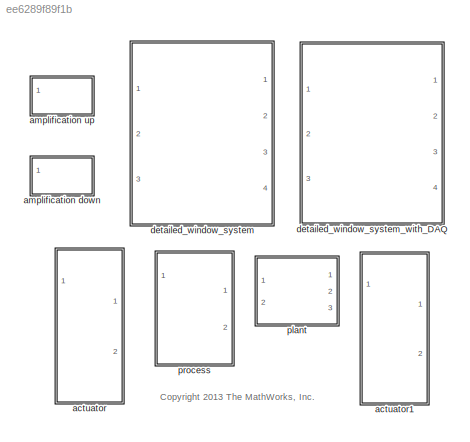
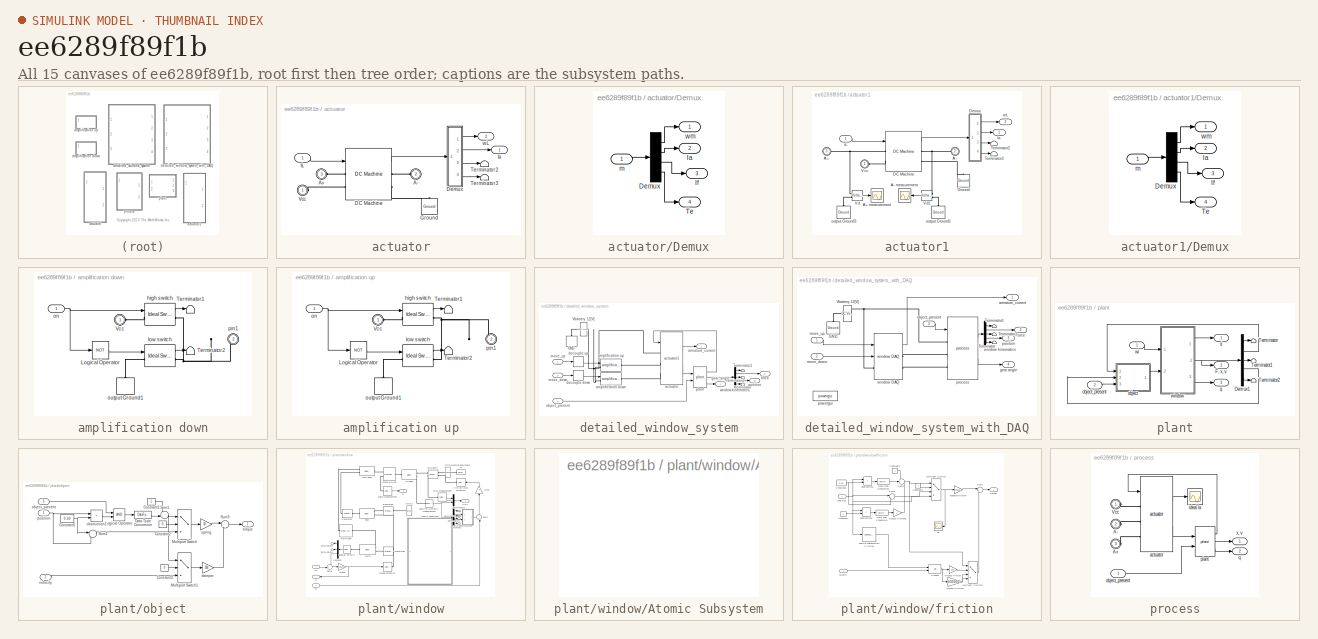
[diagram: thumbnail index - all 15 canvases of the model, root first then tree order]
MODEL slx_ee6289f89f1b
KIND library
BLOCK [SubSystem] actuator
  Ports = [1, 2, 0, 0, 0, 3]
  RequestExecContextInheritance = off
BLOCK [PMIOPort] actuator/A+
  Port = 3
  Side = Left
BLOCK [PMIOPort] actuator/A-
  Port = 2
  Side = Left
BLOCK [Reference] actuator/DC Machine  REF=powerlib/Machines/DC Machine
  Bm = 5
  FieldType = Wound
  Ifinit = 0
  J = 0.085
  Ke = 1.8
  Kt = 1.8
  Laf = 1
  MachineConstant = Torque constant (N.m/A)
  MeasurementBus = off
  MechanicalLoad = Torque TL
  Ports = [1, 1, 0, 0, 0, 2, 2]
  PresetModel = No
  RLa = [0.15  0.036]
  RLf = [1.5 3]
  ShowDetailedParameters = on
  SourceBlock = powerlib/Machines/DC Machine
  SourceType = DC machine
  Tf = 0
  TsBlock = -1
  TsPowergui = 0
  w0 = 0
BLOCK [SubSystem] actuator/Demux
  Ports = [1, 4]
  RequestExecContextInheritance = off
BLOCK [Demux] actuator/Demux/Demux
  Ports = [1, 4]
BLOCK [Outport] actuator/Demux/Ia
  IconDisplay = Port number
  Port = 2
BLOCK [Outport] actuator/Demux/If
  IconDisplay = Port number
  Port = 3
BLOCK [Outport] actuator/Demux/Te
  IconDisplay = Port number
  Port = 4
BLOCK [Inport] actuator/Demux/m
  IconDisplay = Port number
BLOCK [Outport] actuator/Demux/wm
  IconDisplay = Port number
BLOCK [Reference] actuator/Ground  REF=powerlib/Elements/Ground
  LConnTagsString = a
  Ports = [0, 0, 0, 0, 0, 1]
  SourceBlock = powerlib/Elements/Ground
  SourceType = Ground
BLOCK [Outport] actuator/Ia
  IconDisplay = Port number
BLOCK [Terminator] actuator/Terminator2
BLOCK [Terminator] actuator/Terminator3
BLOCK [PMIOPort] actuator/Vcc
  Port = 1
  Side = Left
BLOCK [Inport] actuator/tL
  IconDisplay = Port number
BLOCK [Outport] actuator/wL
  IconDisplay = Port number
  Port = 2
BLOCK [SubSystem] actuator1
  Ports = [1, 2, 0, 0, 0, 3]
  RequestExecContextInheritance = off
BLOCK [PMIOPort] actuator1/A+
  Port = 3
  Side = Left
BLOCK [Scope] actuator1/A+ measurement
  DataFormat = StructureWithTime
  Floating = off
  NumInputPorts = 1
  Ports = [1]
  SaveName = ScopeData2
  ShowLegends = off
  TimeRange = 0.12
  YMax = 11.8095
  YMin = 11.8065
BLOCK [PMIOPort] actuator1/A-
  Port = 2
  Side = Left
BLOCK [Scope] actuator1/A- measurement
  DataFormat = StructureWithTime
  Floating = off
  NumInputPorts = 1
  Ports = [1]
  SaveName = ScopeData3
  ShowLegends = off
  TimeRange = 0.12
  YMax = 11.9433
  YMin = 11.9431
BLOCK [Reference] actuator1/DC Machine  REF=powerlib/Machines/DC Machine
  Bm = 5
  FieldType = Wound
  Ifinit = 0
  J = 0.085
  Ke = 1.8
  Kt = 1.8
  Laf = 1
  MachineConstant = Torque constant (N.m/A)
  MeasurementBus = off
  MechanicalLoad = Torque TL
  Ports = [1, 1, 0, 0, 0, 2, 2]
  PresetModel = No
  RLa = [0.15  0.036]
  RLf = [1.5 3]
  ShowDetailedParameters = on
  SourceBlock = powerlib/Machines/DC Machine
  SourceType = DC machine
  Tf = 0
  TsBlock = -1
  TsPowergui = 0
  w0 = 0
BLOCK [SubSystem] actuator1/Demux
  Ports = [1, 4]
  RequestExecContextInheritance = off
BLOCK [Demux] actuator1/Demux/Demux
  Ports = [1, 4]
BLOCK [Outport] actuator1/Demux/Ia
  IconDisplay = Port number
  Port = 2
BLOCK [Outport] actuator1/Demux/If
  IconDisplay = Port number
  Port = 3
BLOCK [Outport] actuator1/Demux/Te
  IconDisplay = Port number
  Port = 4
BLOCK [Inport] actuator1/Demux/m
  IconDisplay = Port number
BLOCK [Outport] actuator1/Demux/wm
  IconDisplay = Port number
BLOCK [Reference] actuator1/Ground  REF=powerlib/Elements/Ground
  LConnTagsString = a
  Ports = [0, 0, 0, 0, 0, 1]
  SourceBlock = powerlib/Elements/Ground
  SourceType = Ground
BLOCK [Outport] actuator1/Ia
  IconDisplay = Port number
BLOCK [Terminator] actuator1/Terminator2
BLOCK [Terminator] actuator1/Terminator3
BLOCK [PMIOPort] actuator1/Vcc
  Port = 1
  Side = Left
BLOCK [Reference] actuator1/Vd  REF=powerlib/Measurements/Voltage Measurement
  OutputType = Magnitude
  PSBequivalent = 0
  PhasorSimulation = off
  Ports = [0, 1, 0, 0, 0, 2]
  SourceBlock = powerlib/Measurements/Voltage Measurement
  SourceType = Voltage Measurement
BLOCK [Reference] actuator1/Vd1  REF=powerlib/Measurements/Voltage Measurement
  OutputType = Magnitude
  PSBequivalent = 0
  PhasorSimulation = off
  Ports = [0, 1, 0, 0, 0, 2]
  SourceBlock = powerlib/Measurements/Voltage Measurement
  SourceType = Voltage Measurement
BLOCK [Reference] actuator1/output Ground1  REF=powerlib/Elements/Ground
  LConnTagsString = a
  Ports = [0, 0, 0, 0, 0, 1]
  SourceBlock = powerlib/Elements/Ground
  SourceType = Ground
BLOCK [Reference] actuator1/output Ground3  REF=powerlib/Elements/Ground
  LConnTagsString = a
  Ports = [0, 0, 0, 0, 0, 1]
  SourceBlock = powerlib/Elements/Ground
  SourceType = Ground
BLOCK [Inport] actuator1/tL
  IconDisplay = Port number
BLOCK [Outport] actuator1/wL
  IconDisplay = Port number
  Port = 2
BLOCK [SubSystem] amplification down
  Ports = [1, 0, 0, 0, 0, 1, 1]
  RequestExecContextInheritance = off
BLOCK [Logic] amplification down/Logical Operator
  IconShape = distinctive
  Operator = NOT
  OutDataTypeStr = boolean
  Ports = [1, 1]
BLOCK [Terminator] amplification down/Terminator1
BLOCK [Terminator] amplification down/Terminator2
BLOCK [PMIOPort] amplification down/Vcc
  Port = 1
  Side = Left
BLOCK [Reference] amplification down/high switch  REF=powerlib/Power
Electronics/Ideal Switch
  Cs = inf
  IC = 0
  Lon = 0
  Measurements = on
  Ports = [1, 1, 0, 0, 0, 1, 1]
  Ron = 0.01
  Rs = 1000000
  SourceBlock = powerlib/Power\nElectronics/Ideal Switch
  SourceType = Ideal Switch
BLOCK [Reference] amplification down/low switch  REF=powerlib/Power
Electronics/Ideal Switch
  Cs = inf
  IC = 0
  Lon = 0
  Measurements = on
  Ports = [1, 1, 0, 0, 0, 1, 1]
  Ron = 0.01
  Rs = 1000000
  SourceBlock = powerlib/Power\nElectronics/Ideal Switch
  SourceType = Ideal Switch
BLOCK [Inport] amplification down/on
  IconDisplay = Port number
BLOCK [PMComponent] amplification down/output Ground1
  LConnTagsString = a
  LeftPortType = p1
  PhysicalDomain = powersysdomain
  Ports = [0, 0, 0, 0, 0, 1]
  RightPortType = p1
BLOCK [PMIOPort] amplification down/pin1
  Port = 2
  Side = Right
BLOCK [SubSystem] amplification up
  Ports = [1, 0, 0, 0, 0, 1, 1]
  RequestExecContextInheritance = off
BLOCK [Logic] amplification up/Logical Operator
  IconShape = distinctive
  Operator = NOT
  OutDataTypeStr = boolean
  Ports = [1, 1]
BLOCK [Terminator] amplification up/Terminator1
BLOCK [Terminator] amplification up/Terminator2
BLOCK [PMIOPort] amplification up/Vcc
  Port = 1
  Side = Left
BLOCK [Reference] amplification up/high switch  REF=powerlib/Power
Electronics/Ideal Switch
  Cs = inf
  IC = 0
  Lon = 0
  Measurements = on
  Ports = [1, 1, 0, 0, 0, 1, 1]
  Ron = 0.01
  Rs = 1000000
  SourceBlock = powerlib/Power\nElectronics/Ideal Switch
  SourceType = Ideal Switch
BLOCK [Reference] amplification up/low switch  REF=powerlib/Power
Electronics/Ideal Switch
  Cs = inf
  IC = 0
  Lon = 0
  Measurements = on
  Ports = [1, 1, 0, 0, 0, 1, 1]
  Ron = 0.01
  Rs = 1000000
  SourceBlock = powerlib/Power\nElectronics/Ideal Switch
  SourceType = Ideal Switch
BLOCK [Inport] amplification up/on
  IconDisplay = Port number
BLOCK [PMComponent] amplification up/output Ground1
  LConnTagsString = a
  LeftPortType = p1
  PhysicalDomain = powersysdomain
  Ports = [0, 0, 0, 0, 0, 1]
  RightPortType = p1
BLOCK [PMIOPort] amplification up/pin1
  Port = 2
  Side = Right
BLOCK [SubSystem] detailed_window_system
  Ports = [3, 4]
  RequestExecContextInheritance = off
BLOCK [PMComponent] detailed_window_system/GND
  LConnTagsString = a
  LeftPortType = p1
  PhysicalDomain = powersysdomain
  Ports = [0, 0, 0, 0, 0, 1]
  RightPortType = p1
BLOCK [Terminator] detailed_window_system/Terminator
BLOCK [Terminator] detailed_window_system/Terminator1
BLOCK [Terminator] detailed_window_system/Terminator2
BLOCK [Reference] detailed_window_system/Vbattery 12[V]  REF=powerlib/Electrical
Sources/DC Voltage Source
  Amplitude = 12
  Measurements = None
  Ports = [0, 0, 0, 0, 0, 1, 1]
  SourceBlock = powerlib/Electrical\nSources/DC Voltage Source
  SourceType = DC Voltage Source
BLOCK [Reference] detailed_window_system/actuator  REF=slexPowerWindowPHYSLib/actuator1
  Ports = [1, 2, 0, 0, 0, 3]
  SourceBlock = slexPowerWindowPHYSLib/actuator1
  SourceType = SubSystem
BLOCK [Reference] detailed_window_system/amplification down  REF=slexPowerWindowPHYSLib/amplification
down
  Ports = [1, 0, 0, 0, 0, 1, 1]
  SourceBlock = slexPowerWindowPHYSLib/amplification\ndown
  SourceType = SubSystem
BLOCK [Reference] detailed_window_system/amplification up  REF=slexPowerWindowPHYSLib/amplification
up
  Ports = [1, 0, 0, 0, 0, 1, 1]
  SourceBlock = slexPowerWindowPHYSLib/amplification\nup
  SourceType = SubSystem
BLOCK [Outport] detailed_window_system/armature_current
  IconDisplay = Port number
BLOCK [Memory] detailed_window_system/decouple down
BLOCK [Memory] detailed_window_system/decouple up
BLOCK [Outport] detailed_window_system/force
  IconDisplay = Port number
  Port = 2
BLOCK [Outport] detailed_window_system/gear_angle
  IconDisplay = Port number
  Port = 4
BLOCK [Inport] detailed_window_system/move_down
  IconDisplay = Port number
  Port = 2
BLOCK [Inport] detailed_window_system/move_up
  IconDisplay = Port number
BLOCK [Inport] detailed_window_system/object_present
  IconDisplay = Port number
  Port = 3
BLOCK [Reference] detailed_window_system/plant  REF=slexPowerWindowPHYSLib/plant
  Ports = [2, 3]
  SourceBlock = slexPowerWindowPHYSLib/plant
  SourceType = SubSystem
BLOCK [Outport] detailed_window_system/position
  IconDisplay = Port number
  Port = 3
BLOCK [Demux] detailed_window_system/window kinematics
  Outputs = [1,1,2,1,4]
  Ports = [1, 5]
BLOCK [SubSystem] detailed_window_system_with_DAQ
  Ports = [3, 4]
  RequestExecContextInheritance = off
  VariantControl = Variant3
BLOCK [Reference] detailed_window_system_with_DAQ/GND  REF=powerlib/Elements/Ground
  LConnTagsString = a
  Ports = [0, 0, 0, 0, 0, 1]
  SourceBlock = powerlib/Elements/Ground
  SourceType = Ground
BLOCK [Terminator] detailed_window_system_with_DAQ/Terminator
BLOCK [Terminator] detailed_window_system_with_DAQ/Terminator1
BLOCK [Terminator] detailed_window_system_with_DAQ/Terminator2
BLOCK [Reference] detailed_window_system_with_DAQ/Vbattery 12[V]  REF=powerlib/Electrical
Sources/DC Voltage Source
  Amplitude = 12
  Measurements = None
  Ports = [0, 0, 0, 0, 0, 1, 1]
  SourceBlock = powerlib/Electrical\nSources/DC Voltage Source
  SourceType = DC Voltage Source
BLOCK [Outport] detailed_window_system_with_DAQ/armature_current
  IconDisplay = Port number
BLOCK [Outport] detailed_window_system_with_DAQ/force
  IconDisplay = Port number
  Port = 2
BLOCK [Outport] detailed_window_system_with_DAQ/gear angle
  IconDisplay = Port number
  Port = 4
BLOCK [Inport] detailed_window_system_with_DAQ/move_down
  IconDisplay = Port number
  Port = 2
BLOCK [Inport] detailed_window_system_with_DAQ/move_up
  IconDisplay = Port number
BLOCK [Inport] detailed_window_system_with_DAQ/object_present
  IconDisplay = Port number
  Port = 3
BLOCK [Outport] detailed_window_system_with_DAQ/position
  IconDisplay = Port number
  Port = 3
BLOCK [Reference] detailed_window_system_with_DAQ/powergui  REF=powerlib/powergui
  DisableRonSwitches = off
  DisableSnubberDevices = off
  DisableVfSwitches = off
  DisplayEquations = off
  DisplayStyle = 1
  EnableUseOfTLC = off
  ErrMax = 1e-4
  Frange = [0:2:500]
  FreqAxis = off
  FunctionMessages = off
  HookPort = off
  Interpol = off
  Iterations = 50
  MaxFrequency = 1000
  Pbase = 100e6
  Ports = []
  ResistiveCurrentMeasurement = off
  RestoreLinks = warning
  RmsSteady = 1
  SPID = off
  SampleTime = 50e-6
  ShowGrid = off
  SolverType = Tustin
  SourceBlock = powerlib/powergui
  SourceType = PSB option menu block
  StartTime = 0.0
  SwTol = 0
  Ts = 0
  UnitsV = kV
  UnitsW = MW
  Xlog = on
  Ylog = off
  ZoomFFT = on
  cycles = 1
  display = off
  echomessages = off
  frequency = 60
  frequencyindice = 0
  frequencyindicesteady = 1
  fundamental = 60
  methode = off
  save = off
  structure = 0
  variable = ZData
  x0status = blocks
BLOCK [Reference] detailed_window_system_with_DAQ/process  REF=slexPowerWindowPHYSLib/process
  Ports = [1, 2, 0, 0, 0, 3]
  SourceBlock = slexPowerWindowPHYSLib/process
  SourceType = SubSystem
BLOCK [Reference] detailed_window_system_with_DAQ/window DAQ  REF=slexPowerWindowDSPLib/window
DAQ
  Ports = [2, 1, 0, 0, 0, 1, 2]
  SourceBlock = slexPowerWindowDSPLib/window\nDAQ
  SourceType = SubSystem
BLOCK [Demux] detailed_window_system_with_DAQ/window kinematics
  Outputs = [1,1,2,1,4]
  Ports = [1, 5]
BLOCK [SubSystem] plant
  Ports = [2, 3]
  RequestExecContextInheritance = off
BLOCK [Demux] plant/Demux1
  Outputs = [4, 1, 2, 1, 1]
  Ports = [1, 5]
BLOCK [Outport] plant/F, x, v
  IconDisplay = Port number
  Port = 2
BLOCK [Terminator] plant/Terminator
BLOCK [Terminator] plant/Terminator1
BLOCK [Terminator] plant/Terminator2
BLOCK [SubSystem] plant/object
  Ports = [3, 1]
  RequestExecContextInheritance = off
BLOCK [Constant] plant/object/Constant1
BLOCK [Constant] plant/object/Constant2
  Value = 0
BLOCK [Constant] plant/object/Constant3
  Value = 0
BLOCK [Constant] plant/object/Constant5
  Value = 0.30
BLOCK [DataTypeConversion] plant/object/Data Type Conversion
  OutDataTypeStr = double
  RndMeth = Floor
  SaturateOnIntegerOverflow = off
BLOCK [Logic] plant/object/Logical Operator
  IconShape = distinctive
  OutDataTypeStr = boolean
  Ports = [2, 1]
BLOCK [MultiPortSwitch] plant/object/Multiport Switch
  Inputs = 2
  Ports = [3, 1]
  SaturateOnIntegerOverflow = off
BLOCK [MultiPortSwitch] plant/object/Multiport Switch1
  Inputs = 2
  Ports = [3, 1]
  SaturateOnIntegerOverflow = off
BLOCK [Sum] plant/object/Sum1
  IconShape = round
  Inputs = ++|
  Ports = [2, 1]
BLOCK [Sum] plant/object/Sum2
  IconShape = round
  Inputs = |-+
  Ports = [2, 1]
BLOCK [Sum] plant/object/Sum3
  IconShape = round
  Inputs = |++
  Ports = [2, 1]
BLOCK [Gain] plant/object/damper
  Gain = 500
BLOCK [Inport] plant/object/object_present
  IconDisplay = Port number
  Port = 3
BLOCK [RelationalOperator] plant/object/obstruction1
  Operator = >
  OutDataTypeStr = boolean
  Ports = [2, 1]
BLOCK [Inport] plant/object/position
  IconDisplay = Port number
BLOCK [Gain] plant/object/spring
  Gain = 50
BLOCK [Outport] plant/object/torque
  IconDisplay = Port number
BLOCK [Inport] plant/object/velocity
  IconDisplay = Port number
  Port = 2
BLOCK [Inport] plant/object_present
  IconDisplay = Port number
  Port = 2
BLOCK [Outport] plant/q
  IconDisplay = Port number
  Port = 3
BLOCK [Outport] plant/ti
  IconDisplay = Port number
BLOCK [Inport] plant/wi
  IconDisplay = Port number
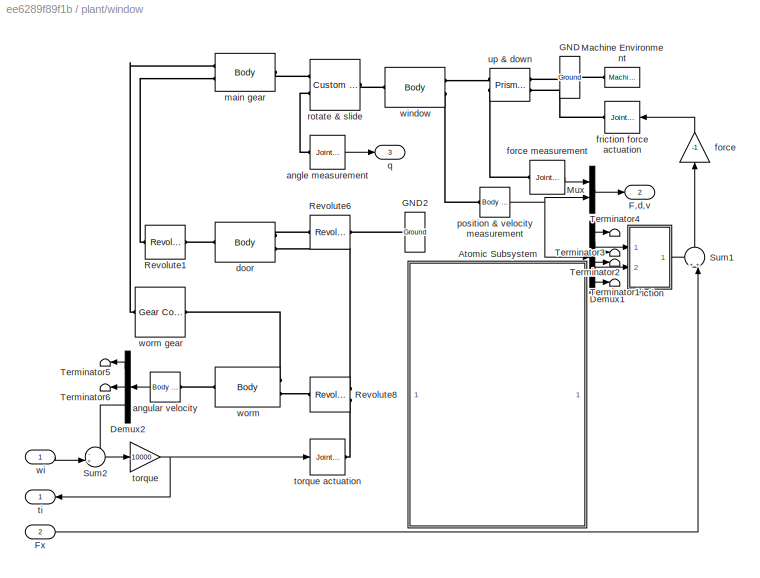
BLOCK [SubSystem] plant/window
  Ports = [2, 3]
  RequestExecContextInheritance = off
BLOCK [SubSystem] plant/window/Atomic Subsystem
  Ports = []
  RequestExecContextInheritance = off
  TreatAsAtomicUnit = on
BLOCK [Demux] plant/window/Demux1
  Outputs = 6
  Ports = [1, 6]
BLOCK [Demux] plant/window/Demux2
  Outputs = 3
  Ports = [1, 3]
BLOCK [Outport] plant/window/F,d,v
  IconDisplay = Port number
  Port = 2
BLOCK [Inport] plant/window/Fx
  IconDisplay = Port number
  Port = 2
BLOCK [Reference] plant/window/GND  REF=mblibv1/Bodies/Ground
  ClassName = Ground
  CoordPosition = [10 0 0]
  CoordPositionUnits = cm
  DialogClass = GroundBlock
  LeftPortType = env
  MachineId = [0 0]
  ParameterChecksum = [0 0 0 0]
  PhysicalDomain = Mechanical
  Ports = [0, 0, 0, 0, 0, 1, 1]
  RightPortType = workingframe
  ShowEnvPort = on
  SourceBlock = mblibv1/Bodies/Ground
  SourceType = Ground
  StateVectorMgrId = -1
  TopologyChecksum = [0 0 0 0]
  UpdateFromCAD = off
  UserDataPersistent = on
BLOCK [Reference] plant/window/GND2  REF=mblibv1/Bodies/Ground
  ClassName = Ground
  CoordPosition = [0 0 0]
  CoordPositionUnits = m
  DialogClass = GroundBlock
  LeftPortType = env
  MachineId = [0 0]
  ParameterChecksum = [0 0 0 0]
  PhysicalDomain = Mechanical
  Ports = [0, 0, 0, 0, 0, 0, 1]
  RightPortType = workingframe
  ShowEnvPort = off
  SourceBlock = mblibv1/Bodies/Ground
  SourceType = Ground
  StateVectorMgrId = -1
  TopologyChecksum = [0 0 0 0]
  UpdateFromCAD = off
  UserDataPersistent = on
BLOCK [Reference] plant/window/Machine Environment  REF=mblibv1/Bodies/Machine
Environment
  AnalysisType = Forward dynamics
  AngularAssemblyTolerance = 0.001
  AngularAssemblyToleranceUnits = rad
  BodyColorSelMode = Use model default
  BodyVisualizationType = Use model default body geometries
  ClassName = Environment
  ConstraintAbsTolerance = 0.0001
  ConstraintRelTolerance = 0.0001
  ConstraintSolverType = Stabilizing
  DefaultBodyColor = [1 0 0]
  DialogTemplateClass = MECH.MachineEnvironment
  Dimensionality = Auto-detect
  Gravity = [0 0 0]
  GravityAsSignal = off
  GravityUnits = m/s^2
  LinearAssemblyTolerance = 0.001
  LinearAssemblyToleranceUnits = m
  PerturbationSize = 0.001
  PhysicalDomain = Mechanical
  PortType = env
  Ports = [0, 0, 0, 0, 0, 0, 1]
  RedundancyAnalysisTolerance = 1e-14
  RedundancyAnalysisToleranceType = Automatically select tolerance
  SourceBlock = mblibv1/Bodies/Machine\nEnvironment
  SourceType = Machine Environment
  StatePerturbationType = Adaptive
  SyncWhenCopied = off
  Tag = Factory ground
  UseRobustSingularityHandling = off
  VisualizeMachine = on
BLOCK [Mux] plant/window/Mux
  DisplayOption = bar
  Inputs = 2
  Ports = [2, 1]
BLOCK [Reference] plant/window/Revolute1  REF=mblibv1/Joints/Revolute
  ClassName = Joint
  CutJoint = off
  Description = Mechanical Blockset
  DialogClass = JointBlock
  LConnTagsString = __newl0
  MarkAsCut = off
  NumSAPorts = 0
  Ports = [0, 0, 0, 0, 0, 1, 1]
  PrimitiveProps = R1$WORLD$[0 0 1]$revolute
  Primitives = revolute
  R1Axis = [0 0 1]
  RConnTagsString = __newr0
  SourceBlock = mblibv1/Joints/Revolute
  SourceType = Revolute
  Tag = Factory generic
  UpdateFromCAD = off
BLOCK [Reference] plant/window/Revolute6  REF=mblibv1/Joints/Revolute
  ClassName = Joint
  CutJoint = off
  Description = Mechanical Blockset
  DialogClass = JointBlock
  LConnTagsString = __newl0
  MarkAsCut = off
  NumSAPorts = 0
  Ports = [0, 0, 0, 0, 0, 1, 1]
  PrimitiveProps = R1$WORLD$[1 0 0]$revolute
  Primitives = revolute
  R1Axis = [1 0 0]
  RConnTagsString = __newr0
  SourceBlock = mblibv1/Joints/Revolute
  SourceType = Revolute
  Tag = Factory generic
  UpdateFromCAD = off
BLOCK [Reference] plant/window/Revolute8  REF=mblibv1/Joints/Revolute
  ClassName = Joint
  CutJoint = off
  Description = Mechanical Blockset
  DialogClass = JointBlock
  LConnTagsString = __newl0|SA1
  MarkAsCut = off
  NumSAPorts = 1
  Ports = [0, 0, 0, 0, 0, 2, 1]
  PrimitiveProps = R1$WORLD$[0 0 1]$revolute
  Primitives = revolute
  R1Axis = [0 0 1]
  RConnTagsString = __newr0
  SourceBlock = mblibv1/Joints/Revolute
  SourceType = Revolute
  Tag = Factory generic
  UpdateFromCAD = off
BLOCK [Sum] plant/window/Sum1
  IconShape = round
  Inputs = ++|
  Ports = [2, 1]
BLOCK [Sum] plant/window/Sum2
  IconShape = round
  Inputs = -+|
  Ports = [2, 1]
BLOCK [Terminator] plant/window/Terminator1
BLOCK [Terminator] plant/window/Terminator2
BLOCK [Terminator] plant/window/Terminator3
BLOCK [Terminator] plant/window/Terminator4
BLOCK [Terminator] plant/window/Terminator5
BLOCK [Terminator] plant/window/Terminator6
BLOCK [Reference] plant/window/angle measurement  REF=mblibv1/Sensors & 
Actuators/Joint Sensor
  Acceleration = off
  AccelerationUnits = m/s
  ActiveIO = off
  Angle = on
  AngleUnits = rad
  ArcAcceleration = off
  ArcAccelerationUnits = deg/s
  ArcVelocity = off
  ArcVelocityUnits = deg/s
  ClassName = JointSensor
  CoordPosition = off
  CoordPositionUnits = m
  Description = Mechanical Blockset
  DialogClass = MechanicalSensorBlock
  Force = off
  ForceUnits = N
  Muxed = on
  OutputVector = [ 1 ]
  PhysicalDomain = Mechanical
  PortType = blob
  Ports = [0, 1, 0, 0, 0, 1]
  Pose = off
  Primitive = R1
  Quaternion = on
  QuaternionDDT = off
  QuaternionDT = off
  QuaternionUnits = off
  ReactionForce = off
  ReactionForceUnits = N
  ReactionMoment = off
  ReactionMomentUnits = N-m
  ReactionReferenceFrame = Absolute (World)
  ReactionSensedSide = Base
  ReferenceFrame = Absolute (INERTIAL)
  SourceBlock = mblibv1/Sensors & \nActuators/Joint Sensor
  SourceType = Joint Sensor
  Torque = off
  TorqueUnits = N-m
  UpdateFromCAD = off
  Velocity = off
  VelocityUnits = m/s
  Width = 1
BLOCK [Reference] plant/window/angular velocity  REF=mblibv1/Sensors & 
Actuators/Body Sensor
  Acceleration = off
  AccelerationUnits = m/s
  ActiveIO = off
  Angle = on
  AngleUnits = deg
  ArcAcceleration = off
  ArcAccelerationUnits = deg/s
  ArcVelocity = on
  ArcVelocityUnits = rad/s
  ClassName = BodySensor
  CoordPosition = off
  CoordPositionUnits = m
  Description = Mechanical Blockset
  DialogClass = MechanicalSensorBlock
  Muxed = on
  OutputVector = [ 3 ]
  PhysicalDomain = Mechanical
  PortType = blob
  Ports = [0, 1, 0, 0, 0, 1]
  Pose = off
  Quaternion = on
  QuaternionDDT = off
  QuaternionDT = off
  QuaternionUnits = off
  ReferenceFrame = Absolute (World)
  SourceBlock = mblibv1/Sensors & \nActuators/Body Sensor
  SourceType = Body Sensor
  UpdateFromCAD = off
  Velocity = off
  VelocityUnits = m/s
  Width = 3
BLOCK [Reference] plant/window/door  REF=mblibv1/Bodies/Body
  AttachedToCS = CG
  BodyColor = [1 0 0]
  BodyColorSelMode = MACHINE_DEFAULT
  CG = Left$CG$[0 0 0]$WORLD$WORLD$cm$[0 0 0]$Euler X-Y-Z$deg$WORLD$true$none
  CGPos = [0 0 0]
  CGRot = [0 0 0]
  CS0Pos = []
  CS0Rot = []
  CS10Pos = []
  CS10Rot = []
  CS11Pos = []
  CS11Rot = []
  CS12Pos = []
  CS12Rot = []
  CS13Pos = []
  CS13Rot = []
  CS14Pos = []
  CS14Rot = []
  CS15Pos = []
  CS15Rot = []
  CS16Pos = []
  CS16Rot = []
  CS17Pos = []
  CS17Rot = []
  CS18Pos = []
  CS18Rot = []
  CS19Pos = []
  CS19Rot = []
  CS1Pos = [17 0 0]
  CS1Rot = [0 0 0]
  CS20Pos = []
  CS20Rot = []
  CS2Pos = []
  CS2Rot = []
  CS3Pos = [0 0 0]
  CS3Rot = [0 0 0]
  CS4Pos = []
  CS4Rot = []
  CS5Pos = []
  CS5Rot = []
  CS6Pos = []
  CS6Rot = []
  CS7Pos = []
  CS7Rot = []
  CS8Pos = []
  CS8Rot = []
  CS9Pos = []
  CS9Rot = []
  ClassName = Body
  Density = 1
  DensityUnits = kg/m^3
  DensityUse = false
  Description = Mechanical Blockset
  DialogClass = MechanicalBodyBlock
  GraphicsMode = MACHINE_DEFAULT
  Inertia = eye(3)
  InertiaUnits = kg*m^2
  LConnTagsString = CS3|CG
  Mass = 1
  MassUnits = kg
  Ports = [0, 0, 0, 0, 0, 2, 1]
  RConnTagsString = CS1
  Shape = Cylinder
  ShapeDims = [1 1]
  ShapeUnits = m
  ShapeUse = false
  SourceBlock = mblibv1/Bodies/Body
  SourceType = Body
  Tag = Factory generic
  UpdateFromCAD = off
  WorkingFrames = Left$CS3$[0 0 0]$CG$CG$cm$[0 0 0]$Euler X-Y-Z$deg$WORLD$true$none#Right$CS1$[17 0 0]$CG$CG$cm$[0 0 0]$Euler X-Y-Z$deg$WORLD$true$none
BLOCK [Gain] plant/window/force
  Gain = -1
BLOCK [Reference] plant/window/force measurement  REF=mblibv1/Sensors & 
Actuators/Joint Sensor
  Acceleration = off
  AccelerationUnits = m/s
  ActiveIO = off
  Angle = on
  AngleUnits = deg
  ArcAcceleration = off
  ArcAccelerationUnits = deg/s
  ArcVelocity = off
  ArcVelocityUnits = deg/s
  ClassName = JointSensor
  CoordPosition = off
  CoordPositionUnits = m
  Description = Mechanical Blockset
  DialogClass = MechanicalSensorBlock
  Force = off
  ForceUnits = N
  Muxed = on
  OutputVector = [ 3 ]
  PhysicalDomain = Mechanical
  PortType = blob
  Ports = [0, 1, 0, 0, 0, 1]
  Pose = off
  Primitive = P1
  Quaternion = on
  QuaternionDDT = off
  QuaternionDT = off
  QuaternionUnits = off
  ReactionForce = on
  ReactionForceUnits = N
  ReactionMoment = off
  ReactionMomentUnits = N-m
  ReactionReferenceFrame = Absolute (World)
  ReactionSensedSide = Base
  ReferenceFrame = Absolute (INERTIAL)
  SourceBlock = mblibv1/Sensors & \nActuators/Joint Sensor
  SourceType = Joint Sensor
  Torque = off
  TorqueUnits = N-m
  UpdateFromCAD = off
  Velocity = off
  VelocityUnits = m/s
  Width = 3
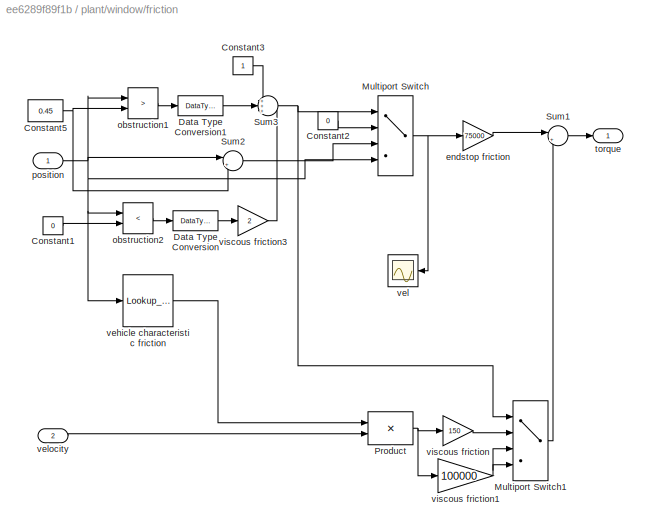
BLOCK [SubSystem] plant/window/friction
  Ports = [2, 1]
  RequestExecContextInheritance = off
BLOCK [Reference] plant/window/friction force actuation  REF=mblibv1/Sensors & 
Actuators/Joint Actuator
  AccelerationUnits = m/s
  ActiveIO = off
  ActuationStyle = Force
  AngleUnits = deg
  ArcAccelerationUnits = deg/s
  ArcVelocityUnits = deg/s
  ClassName = JointActuator
  CoordPositionUnits = m
  Description = Mechanical Blockset
  DialogClass = MechanicalActuatorBlock
  ForceUnits = N
  PhysicalDomain = Mechanical
  PortType = blob
  Ports = [1, 0, 0, 0, 0, 0, 1]
  Primitive = P1
  ReferenceFrame = Absolute (INERTIAL)
  SourceBlock = mblibv1/Sensors & \nActuators/Joint Actuator
  SourceType = Joint Actuator
  TorqueUnits = N-m
  UpdateFromCAD = off
  VelocityUnits = m/s
  Width = 1
BLOCK [Constant] plant/window/friction/Constant1
  Value = 0
BLOCK [Constant] plant/window/friction/Constant2
  Value = 0
BLOCK [Constant] plant/window/friction/Constant3
BLOCK [Constant] plant/window/friction/Constant5
  Value = 0.45
BLOCK [DataTypeConversion] plant/window/friction/Data Type Conversion
  OutDataTypeStr = double
  RndMeth = Floor
  SaturateOnIntegerOverflow = off
BLOCK [DataTypeConversion] plant/window/friction/Data Type Conversion1
  OutDataTypeStr = double
  RndMeth = Floor
  SaturateOnIntegerOverflow = off
BLOCK [MultiPortSwitch] plant/window/friction/Multiport Switch
  Ports = [4, 1]
  SaturateOnIntegerOverflow = off
BLOCK [MultiPortSwitch] plant/window/friction/Multiport Switch1
  Ports = [4, 1]
  SaturateOnIntegerOverflow = off
BLOCK [Product] plant/window/friction/Product
  Ports = [2, 1]
  RndMeth = Floor
BLOCK [Sum] plant/window/friction/Sum1
  IconShape = round
  Inputs = |++
  Ports = [2, 1]
BLOCK [Sum] plant/window/friction/Sum2
  IconShape = round
  Inputs = |+-
  Ports = [2, 1]
BLOCK [Sum] plant/window/friction/Sum3
  IconShape = round
  Inputs = +++
  Ports = [3, 1]
BLOCK [Gain] plant/window/friction/endstop friction
  Gain = 75000
BLOCK [RelationalOperator] plant/window/friction/obstruction1
  Operator = >
  OutDataTypeStr = boolean
  Ports = [2, 1]
BLOCK [RelationalOperator] plant/window/friction/obstruction2
  Operator = <
  OutDataTypeStr = boolean
  Ports = [2, 1]
BLOCK [Inport] plant/window/friction/position
  IconDisplay = Port number
BLOCK [Outport] plant/window/friction/torque
  IconDisplay = Port number
BLOCK [Lookup_n-D] plant/window/friction/vehicle characteristic friction
  BreakpointsForDimension1 = [0 2.5 10 11.5 14 24 30 31 35 47 50]
  NumberOfTableDimensions = 1
  Ports = [1, 1]
  SaturateOnIntegerOverflow = on
  Table = [1.15 1.2 1.05 1.1 1.05 1 1.1 1 0.95 0.9 0.95]
BLOCK [Scope] plant/window/friction/vel
  DataFormat = StructureWithTime
  Floating = off
  NumInputPorts = 1
  Ports = [1]
  SaveName = ScopeData6
  ShowLegends = off
  YMax = 1
  YMin = -1
BLOCK [Inport] plant/window/friction/velocity
  IconDisplay = Port number
  Port = 2
BLOCK [Gain] plant/window/friction/viscous friction
  Gain = 150
BLOCK [Gain] plant/window/friction/viscous friction1
  Gain = 100000
BLOCK [Gain] plant/window/friction/viscous friction3
  Gain = 2
BLOCK [Reference] plant/window/main gear  REF=mblibv1/Bodies/Body
  AttachedToCS = CG
  BodyColor = [1 0 0]
  BodyColorSelMode = MACHINE_DEFAULT
  CG = Left$CG$[17 0 0]$WORLD$WORLD$cm$[0 0 0]$Euler X-Y-Z$deg$WORLD$true$none
  CGPos = [17 0 0]
  CGRot = [0 0 0]
  CS0Pos = []
  CS0Rot = []
  CS10Pos = []
  CS10Rot = []
  CS11Pos = []
  CS11Rot = []
  CS12Pos = []
  CS12Rot = []
  CS13Pos = []
  CS13Rot = []
  CS14Pos = []
  CS14Rot = []
  CS15Pos = []
  CS15Rot = []
  CS16Pos = []
  CS16Rot = []
  CS17Pos = []
  CS17Rot = []
  CS18Pos = []
  CS18Rot = []
  CS19Pos = []
  CS19Rot = []
  CS1Pos = [60 0 0]
  CS1Rot = [0 0 0]
  CS20Pos = []
  CS20Rot = []
  CS2Pos = []
  CS2Rot = []
  CS3Pos = [0 0 0]
  CS3Rot = [0 0 0]
  CS4Pos = []
  CS4Rot = []
  CS5Pos = []
  CS5Rot = []
  CS6Pos = []
  CS6Rot = []
  CS7Pos = []
  CS7Rot = []
  CS8Pos = []
  CS8Rot = []
  CS9Pos = []
  CS9Rot = []
  ClassName = Body
  Density = 1
  DensityUnits = kg/m^3
  DensityUse = false
  Description = Mechanical Blockset
  DialogClass = MechanicalBodyBlock
  GraphicsMode = MACHINE_DEFAULT
  Inertia = eye(3)
  InertiaUnits = kg*m^2
  LConnTagsString = CS3|CG
  Mass = 2
  MassUnits = kg
  Ports = [0, 0, 0, 0, 0, 2, 1]
  RConnTagsString = CS1
  Shape = Cylinder
  ShapeDims = [1 1]
  ShapeUnits = m
  ShapeUse = false
  SourceBlock = mblibv1/Bodies/Body
  SourceType = Body
  Tag = Factory generic
  UpdateFromCAD = off
  WorkingFrames = Left$CS3$[0 0 0]$CG$CG$cm$[0 0 0]$Euler X-Y-Z$deg$WORLD$true$none#Right$CS1$[60 0 0]$CG$CG$cm$[0 0 0]$Euler X-Y-Z$deg$WORLD$true$none
BLOCK [Reference] plant/window/position & velocity measurement  REF=mblibv1/Sensors & 
Actuators/Body Sensor
  Acceleration = off
  AccelerationUnits = m/s
  ActiveIO = off
  Angle = on
  AngleUnits = deg
  ArcAcceleration = off
  ArcAccelerationUnits = deg/s
  ArcVelocity = off
  ArcVelocityUnits = deg/s
  ClassName = BodySensor
  CoordPosition = on
  CoordPositionUnits = m
  Description = Mechanical Blockset
  DialogClass = MechanicalSensorBlock
  Muxed = on
  OutputVector = [ 3 3 ]
  PhysicalDomain = Mechanical
  PortType = blob
  Ports = [0, 1, 0, 0, 0, 1]
  Pose = off
  Quaternion = on
  QuaternionDDT = off
  QuaternionDT = off
  QuaternionUnits = off
  ReferenceFrame = Absolute (World)
  SourceBlock = mblibv1/Sensors & \nActuators/Body Sensor
  SourceType = Body Sensor
  UpdateFromCAD = off
  Velocity = on
  VelocityUnits = m/s
  Width = 6
BLOCK [Outport] plant/window/q
  IconDisplay = Port number
  Port = 3
BLOCK [Reference] plant/window/rotate & slide  REF=mblibv1/Joints/Custom Joint
  ClassName = Joint
  CutJoint = off
  Description = Mechanical Blockset
  DialogClass = JointBlock
  LConnTagsString = __newl0|SA1
  MarkAsCut = off
  NumSAPorts = 1
  P1Axis = [1 0 0]
  P2Axis = []
  P3Axis = []
  Ports = [0, 0, 0, 0, 0, 2, 1]
  PrimitiveProps = R1$Base$[0 0 1]$revolute#P1$Follower$[1 0 0]$prismatic
  Primitives = revolute_prismatic
  R1Axis = [0 0 1]
  R2Axis = []
  R3Axis = []
  RConnTagsString = __newr0
  SAxis = []
  SourceBlock = mblibv1/Joints/Custom Joint
  SourceType = Custom Joint
  Tag = Factory generic
  UpdateFromCAD = off
BLOCK [Outport] plant/window/ti
  IconDisplay = Port number
BLOCK [Gain] plant/window/torque
  Gain = 10000
BLOCK [Reference] plant/window/torque actuation  REF=mblibv1/Sensors & 
Actuators/Joint Actuator
  AccelerationUnits = m/s
  ActiveIO = off
  ActuationStyle = Force
  AngleUnits = deg
  ArcAccelerationUnits = deg/s
  ArcVelocityUnits = deg/s
  ClassName = JointActuator
  CoordPositionUnits = m
  Description = Mechanical Blockset
  DialogClass = MechanicalActuatorBlock
  ForceUnits = N
  PhysicalDomain = Mechanical
  PortType = blob
  Ports = [1, 0, 0, 0, 0, 0, 1]
  Primitive = R1
  ReferenceFrame = Absolute (INERTIAL)
  SourceBlock = mblibv1/Sensors & \nActuators/Joint Actuator
  SourceType = Joint Actuator
  TorqueUnits = N-m
  UpdateFromCAD = off
  VelocityUnits = m/s
  Width = 1
BLOCK [Reference] plant/window/up & down  REF=mblibv1/Joints/Prismatic
  ClassName = Joint
  CutJoint = on
  Description = Mechanical Blockset
  DialogClass = JointBlock
  LConnTagsString = __newl0|SA1
  MarkAsCut = off
  NumSAPorts = 2
  P1Axis = [0 1 0]
  Ports = [0, 0, 0, 0, 0, 2, 2]
  PrimitiveProps = P1$WORLD$[0 1 0]$prismatic
  Primitives = prismatic
  RConnTagsString = __newr0|SA1
  SourceBlock = mblibv1/Joints/Prismatic
  SourceType = Prismatic
  Tag = Factory generic
  UpdateFromCAD = off
BLOCK [Inport] plant/window/wi
  IconDisplay = Port number
BLOCK [Reference] plant/window/window  REF=mblibv1/Bodies/Body
  AttachedToCS = CG
  BodyColor = [1 0 0]
  BodyColorSelMode = MACHINE_DEFAULT
  CG = Left$CG$[10 0 0]$WORLD$WORLD$cm$[0 0 0]$Euler X-Y-Z$deg$WORLD$false$none
  CGPos = [10 0 0]
  CGRot = [0 0 0]
  CS0Pos = []
  CS0Rot = []
  CS10Pos = []
  CS10Rot = []
  CS11Pos = []
  CS11Rot = []
  CS12Pos = []
  CS12Rot = []
  CS13Pos = []
  CS13Rot = []
  CS14Pos = []
  CS14Rot = []
  CS15Pos = []
  CS15Rot = []
  CS16Pos = []
  CS16Rot = []
  CS17Pos = []
  CS17Rot = []
  CS18Pos = []
  CS18Rot = []
  CS19Pos = []
  CS19Rot = []
  CS1Pos = [0 0 0]
  CS1Rot = [0 0 0]
  CS20Pos = []
  CS20Rot = []
  CS2Pos = [0 0 0]
  CS2Rot = [0 0 0]
  CS3Pos = [-15 0 0]
  CS3Rot = [0 0 0]
  CS4Pos = []
  CS4Rot = []
  CS5Pos = []
  CS5Rot = []
  CS6Pos = []
  CS6Rot = []
  CS7Pos = []
  CS7Rot = []
  CS8Pos = []
  CS8Rot = []
  CS9Pos = []
  CS9Rot = []
  ClassName = Body
  Density = 1
  DensityUnits = kg/m^3
  DensityUse = false
  Description = Mechanical Blockset
  DialogClass = MechanicalBodyBlock
  GraphicsMode = MACHINE_DEFAULT
  Inertia = eye(3)
  InertiaUnits = kg*m^2
  LConnTagsString = CS1
  Mass = 5
  MassUnits = kg
  Ports = [0, 0, 0, 0, 0, 1, 2]
  RConnTagsString = CS2|CS3
  Shape = Cylinder
  ShapeDims = [1 1]
  ShapeUnits = m
  ShapeUse = false
  SourceBlock = mblibv1/Bodies/Body
  SourceType = Body
  Tag = Factory generic
  UpdateFromCAD = off
  WorkingFrames = Left$CS1$[0 0 0]$CG$CG$cm$[0 0 0]$Euler X-Y-Z$deg$WORLD$true$none#Right$CS2$[0 0 0]$CG$CG$cm$[0 0 0]$Euler X-Y-Z$deg$WORLD$true$none#Right$CS3$[-15 0 0]$CG$CG$cm$[0 0 0]$Euler X-Y-Z$deg$WORLD$true$none
BLOCK [Reference] plant/window/worm  REF=mblibv1/Bodies/Body
  AttachedToCS = CG
  BodyColor = [1 0 0]
  BodyColorSelMode = MACHINE_DEFAULT
  CG = Right$CG$[0 0 0]$WORLD$WORLD$cm$[0 0 0]$Euler X-Y-Z$deg$WORLD$true$none
  CGPos = [0 0 0]
  CGRot = [0 0 0]
  CS0Pos = []
  CS0Rot = []
  CS10Pos = []
  CS10Rot = []
  CS11Pos = []
  CS11Rot = []
  CS12Pos = []
  CS12Rot = []
  CS13Pos = []
  CS13Rot = []
  CS14Pos = []
  CS14Rot = []
  CS15Pos = []
  CS15Rot = []
  CS16Pos = []
  CS16Rot = []
  CS17Pos = []
  CS17Rot = []
  CS18Pos = []
  CS18Rot = []
  CS19Pos = []
  CS19Rot = []
  CS1Pos = []
  CS1Rot = []
  CS20Pos = []
  CS20Rot = []
  CS2Pos = []
  CS2Rot = []
  CS3Pos = [0 0 0]
  CS3Rot = [0 0 0]
  CS4Pos = [0 0 0]
  CS4Rot = [0 0 0]
  CS5Pos = []
  CS5Rot = []
  CS6Pos = []
  CS6Rot = []
  CS7Pos = []
  CS7Rot = []
  CS8Pos = []
  CS8Rot = []
  CS9Pos = []
  CS9Rot = []
  ClassName = Body
  Density = 1
  DensityUnits = kg/m^3
  DensityUse = false
  Description = Mechanical Blockset
  DialogClass = MechanicalBodyBlock
  GraphicsMode = MACHINE_DEFAULT
  Inertia = eye(3)
  InertiaUnits = kg*m^2
  LConnTagsString = CS3|CS4
  Mass = 0.5
  MassUnits = kg
  Ports = [0, 0, 0, 0, 0, 2, 1]
  RConnTagsString = CG
  Shape = Cylinder
  ShapeDims = [1 1]
  ShapeUnits = m
  ShapeUse = false
  SourceBlock = mblibv1/Bodies/Body
  SourceType = Body
  Tag = Factory generic
  UpdateFromCAD = off
  WorkingFrames = Left$CS3$[0 0 0]$CG$CG$cm$[0 0 0]$Euler X-Y-Z$deg$WORLD$true$none#Left$CS4$[0 0 0]$CG$CG$cm$[0 0 0]$Euler X-Y-Z$deg$WORLD$true$none
BLOCK [Reference] plant/window/worm gear  REF=mblibv1/Constraints & 
Drivers/Gear Constraint
  BaseRadius = 2
  BaseRadiusUnits = cm
  ClassName = GearConstraint
  Description = Mechanical Blockset
  DialogClass = GearConstraint
  FollowerRadius = 15
  FollowerRadiusUnits = cm
  LConnTagsString = __newl0
  NumSAPorts = 0
  Ports = [0, 0, 0, 0, 0, 1, 1]
  RConnTagsString = __newr0
  SourceBlock = mblibv1/Constraints & \nDrivers/Gear Constraint
  SourceType = Gear Constraint
  Tag = Factory generic
  UpdateFromCAD = off
BLOCK [SubSystem] process
  Ports = [1, 2, 0, 0, 0, 3]
  RequestExecContextInheritance = off
BLOCK [PMIOPort] process/A+
  Port = 3
  Side = Left
BLOCK [PMIOPort] process/A-
  Port = 2
  Side = Left
BLOCK [PMIOPort] process/Vcc
  Port = 1
  Side = Left
BLOCK [Reference] process/actuator  REF=slexPowerWindowPHYSLib/actuator
  Ports = [1, 2, 0, 0, 0, 3]
  SourceBlock = slexPowerWindowPHYSLib/actuator
  SourceType = SubSystem
BLOCK [Scope] process/ideal Ia
  DataFormat = StructureWithTime
  Floating = off
  NumInputPorts = 1
  Ports = [1]
  SaveName = ScopeData4
  ShowLegends = off
  YMax = 20
  YMin = -7.5
BLOCK [Inport] process/object_present
  IconDisplay = Port number
BLOCK [Reference] process/plant  REF=slexPowerWindowPHYSLib/plant
  Ports = [2, 3]
  SourceBlock = slexPowerWindowPHYSLib/plant
  SourceType = SubSystem
BLOCK [Outport] process/q
  IconDisplay = Port number
  Port = 2
BLOCK [Outport] process/x, v
  IconDisplay = Port number
ANNOTATION (root): <copyright redacted>
LINE actuator/DC Machine:1 -> actuator/Demux:1
LINE actuator/Demux/Demux:1 -> actuator/Demux/wm:1
LINE actuator/Demux/Demux:2 -> actuator/Demux/Ia:1
LINE actuator/Demux/Demux:3 -> actuator/Demux/If:1
LINE actuator/Demux/Demux:4 -> actuator/Demux/Te:1
LINE actuator/Demux/m:1 -> actuator/Demux/Demux:1
LINE actuator/Demux:1 -> actuator/wL:1
LINE actuator/Demux:2 -> actuator/Ia:1
LINE actuator/Demux:3 -> actuator/Terminator2:1
LINE actuator/Demux:4 -> actuator/Terminator3:1
LINE actuator/tL:1 -> actuator/DC Machine:1
LINE actuator1/DC Machine:1 -> actuator1/Demux:1
LINE actuator1/Demux/Demux:1 -> actuator1/Demux/wm:1
LINE actuator1/Demux/Demux:2 -> actuator1/Demux/Ia:1
LINE actuator1/Demux/Demux:3 -> actuator1/Demux/If:1
LINE actuator1/Demux/Demux:4 -> actuator1/Demux/Te:1
LINE actuator1/Demux/m:1 -> actuator1/Demux/Demux:1
LINE actuator1/Demux:1 -> actuator1/wL:1
LINE actuator1/Demux:2 -> actuator1/Ia:1
LINE actuator1/Demux:3 -> actuator1/Terminator2:1
LINE actuator1/Demux:4 -> actuator1/Terminator3:1
LINE actuator1/Vd1:1 -> actuator1/A- measurement:1
LINE actuator1/Vd:1 -> actuator1/A+ measurement:1
LINE actuator1/tL:1 -> actuator1/DC Machine:1
LINE amplification down/Logical Operator:1 -> amplification down/low switch:1
LINE amplification down/high switch:1 -> amplification down/Terminator1:1
LINE amplification down/low switch:1 -> amplification down/Terminator2:1
NET amplification down/on:1 -> amplification down/Logical Operator:1, amplification down/high switch:1
LINE amplification up/Logical Operator:1 -> amplification up/low switch:1
LINE amplification up/high switch:1 -> amplification up/Terminator1:1
LINE amplification up/low switch:1 -> amplification up/Terminator2:1
NET amplification up/on:1 -> amplification up/Logical Operator:1, amplification up/high switch:1
LINE detailed_window_system/actuator:1 -> detailed_window_system/armature_current:1
LINE detailed_window_system/actuator:2 -> detailed_window_system/plant:1
LINE detailed_window_system/decouple down:1 -> detailed_window_system/amplification down:1
LINE detailed_window_system/decouple up:1 -> detailed_window_system/amplification up:1
LINE detailed_window_system/move_down:1 -> detailed_window_system/decouple down:1
LINE detailed_window_system/move_up:1 -> detailed_window_system/decouple up:1
LINE detailed_window_system/object_present:1 -> detailed_window_system/plant:2
LINE detailed_window_system/plant:1 -> detailed_window_system/actuator:1
LINE detailed_window_system/plant:2 -> detailed_window_system/window kinematics:1
LINE detailed_window_system/plant:3 -> detailed_window_system/gear_angle:1
LINE detailed_window_system/window kinematics:1 -> detailed_window_system/Terminator1:1
LINE detailed_window_system/window kinematics:2 -> detailed_window_system/force:1
LINE detailed_window_system/window kinematics:3 -> detailed_window_system/Terminator2:1
LINE detailed_window_system/window kinematics:4 -> detailed_window_system/position:1
LINE detailed_window_system/window kinematics:5 -> detailed_window_system/Terminator:1
LINE detailed_window_system_with_DAQ/move_down:1 -> detailed_window_system_with_DAQ/window DAQ:2
LINE detailed_window_system_with_DAQ/move_up:1 -> detailed_window_system_with_DAQ/window DAQ:1
LINE detailed_window_system_with_DAQ/object_present:1 -> detailed_window_system_with_DAQ/process:1
LINE detailed_window_system_with_DAQ/process:1 -> detailed_window_system_with_DAQ/window kinematics:1
LINE detailed_window_system_with_DAQ/process:2 -> detailed_window_system_with_DAQ/gear angle:1
LINE detailed_window_system_with_DAQ/window DAQ:1 -> detailed_window_system_with_DAQ/armature_current:1
LINE detailed_window_system_with_DAQ/window kinematics:1 -> detailed_window_system_with_DAQ/Terminator1:1
LINE detailed_window_system_with_DAQ/window kinematics:2 -> detailed_window_system_with_DAQ/force:1
LINE detailed_window_system_with_DAQ/window kinematics:3 -> detailed_window_system_with_DAQ/Terminator2:1
LINE detailed_window_system_with_DAQ/window kinematics:4 -> detailed_window_system_with_DAQ/position:1
LINE detailed_window_system_with_DAQ/window kinematics:5 -> detailed_window_system_with_DAQ/Terminator:1
LINE plant/Demux1:1 -> plant/Terminator:1
LINE plant/Demux1:2 -> plant/object:1
LINE plant/Demux1:3 -> plant/Terminator1:1
LINE plant/Demux1:4 -> plant/object:2
LINE plant/Demux1:5 -> plant/Terminator2:1
LINE plant/object/Constant1:1 -> plant/object/Sum1:1
LINE plant/object/Constant2:1 -> plant/object/Multiport Switch:2
LINE plant/object/Constant3:1 -> plant/object/Multiport Switch1:2
NET plant/object/Constant5:1 -> plant/object/Sum2:1, plant/object/obstruction1:2
LINE plant/object/Data Type Conversion:1 -> plant/object/Sum1:2
LINE plant/object/Logical Operator:1 -> plant/object/Data Type Conversion:1
LINE plant/object/Multiport Switch1:1 -> plant/object/damper:1
LINE plant/object/Multiport Switch:1 -> plant/object/spring:1
NET plant/object/Sum1:1 -> plant/object/Multiport Switch1:1, plant/object/Multiport Switch:1
LINE plant/object/Sum2:1 -> plant/object/Multiport Switch:3
LINE plant/object/Sum3:1 -> plant/object/torque:1
LINE plant/object/damper:1 -> plant/object/Sum3:2
LINE plant/object/object_present:1 -> plant/object/Logical Operator:1
LINE plant/object/obstruction1:1 -> plant/object/Logical Operator:2
NET plant/object/position:1 -> plant/object/Sum2:2, plant/object/obstruction1:1
LINE plant/object/spring:1 -> plant/object/Sum3:1
LINE plant/object/velocity:1 -> plant/object/Multiport Switch1:3
LINE plant/object:1 -> plant/window:2
LINE plant/object_present:1 -> plant/object:3
LINE plant/wi:1 -> plant/window:1
LINE plant/window/Demux1:1 -> plant/window/Terminator4:1
LINE plant/window/Demux1:2 -> plant/window/friction:1
LINE plant/window/Demux1:3 -> plant/window/Terminator3:1
LINE plant/window/Demux1:4 -> plant/window/Terminator2:1
LINE plant/window/Demux1:5 -> plant/window/friction:2
LINE plant/window/Demux1:6 -> plant/window/Terminator1:1
LINE plant/window/Demux2:1 -> plant/window/Terminator5:1
LINE plant/window/Demux2:2 -> plant/window/Terminator6:1
LINE plant/window/Demux2:3 -> plant/window/Sum2:1
LINE plant/window/Fx:1 -> plant/window/Sum1:2
LINE plant/window/Mux:1 -> plant/window/F,d,v:1
LINE plant/window/Sum1:1 -> plant/window/force:1
LINE plant/window/Sum2:1 -> plant/window/torque:1
LINE plant/window/angle measurement:1 -> plant/window/q:1
LINE plant/window/angular velocity:1 -> plant/window/Demux2:1
LINE plant/window/force measurement:1 -> plant/window/Mux:1
LINE plant/window/force:1 -> plant/window/friction force actuation:1
LINE plant/window/friction/Constant1:1 -> plant/window/friction/obstruction2:2
LINE plant/window/friction/Constant2:1 -> plant/window/friction/Multiport Switch:2
LINE plant/window/friction/Constant3:1 -> plant/window/friction/Sum3:1
NET plant/window/friction/Constant5:1 -> plant/window/friction/Sum2:2, plant/window/friction/obstruction1:2
LINE plant/window/friction/Data Type Conversion1:1 -> plant/window/friction/Sum3:2
LINE plant/window/friction/Data Type Conversion:1 -> plant/window/friction/viscous friction3:1
LINE plant/window/friction/Multiport Switch1:1 -> plant/window/friction/Sum1:2
NET plant/window/friction/Multiport Switch:1 -> plant/window/friction/endstop friction:1, plant/window/friction/vel:1
NET plant/window/friction/Product:1 -> plant/window/friction/viscous friction1:1, plant/window/friction/viscous friction:1
LINE plant/window/friction/Sum1:1 -> plant/window/friction/torque:1
LINE plant/window/friction/Sum2:1 -> plant/window/friction/Multiport Switch:3
NET plant/window/friction/Sum3:1 -> plant/window/friction/Multiport Switch1:1, plant/window/friction/Multiport Switch:1
LINE plant/window/friction/endstop friction:1 -> plant/window/friction/Sum1:1
LINE plant/window/friction/obstruction1:1 -> plant/window/friction/Data Type Conversion1:1
LINE plant/window/friction/obstruction2:1 -> plant/window/friction/Data Type Conversion:1
NET plant/window/friction/position:1 -> plant/window/friction/Multiport Switch:4, plant/window/friction/Sum2:1, plant/window/friction/obstruction1:1, plant/window/friction/obstruction2:1, plant/window/friction/vehicle characteristic friction:1
LINE plant/window/friction/vehicle characteristic friction:1 -> plant/window/friction/Product:1
LINE plant/window/friction/velocity:1 -> plant/window/friction/Product:2
NET plant/window/friction/viscous friction1:1 -> plant/window/friction/Multiport Switch1:3, plant/window/friction/Multiport Switch1:4
LINE plant/window/friction/viscous friction3:1 -> plant/window/friction/Sum3:3
LINE plant/window/friction/viscous friction:1 -> plant/window/friction/Multiport Switch1:2
LINE plant/window/friction:1 -> plant/window/Sum1:1
NET plant/window/position & velocity measurement:1 -> plant/window/Demux1:1, plant/window/Mux:2
NET plant/window/torque:1 -> plant/window/ti:1, plant/window/torque actuation:1
LINE plant/window/wi:1 -> plant/window/Sum2:2
LINE plant/window:1 -> plant/ti:1
NET plant/window:2 -> plant/Demux1:1, plant/F, x, v:1
LINE plant/window:3 -> plant/q:1
LINE process/actuator:1 -> process/ideal Ia:1
LINE process/actuator:2 -> process/plant:1
LINE process/object_present:1 -> process/plant:2
LINE process/plant:1 -> process/actuator:1
LINE process/plant:2 -> process/x, v:1
LINE process/plant:3 -> process/q:1
PLINE actuator/A+:RConn1 -- actuator/DC Machine:LConn1
PLINE actuator/A-:RConn1 -- actuator/DC Machine:RConn1
PLINE actuator/DC Machine:LConn2 -- actuator/Vcc:RConn1
PLINE actuator/DC Machine:RConn2 -- actuator/Ground:LConn1
PNET net1: actuator1/A+:RConn1 -- actuator1/DC Machine:LConn1 -- actuator1/Vd:LConn1
PNET net2: actuator1/A-:RConn1 -- actuator1/DC Machine:RConn1 -- actuator1/Vd1:LConn1
PLINE actuator1/DC Machine:LConn2 -- actuator1/Vcc:RConn1
PLINE actuator1/DC Machine:RConn2 -- actuator1/Ground:LConn1
PLINE actuator1/Vd1:LConn2 -- actuator1/output Ground1:LConn1
PLINE actuator1/Vd:LConn2 -- actuator1/output Ground3:LConn1
PLINE amplification down/Vcc:RConn1 -- amplification down/high switch:LConn1
PNET net3: amplification down/high switch:RConn1 -- amplification down/low switch:RConn1 -- amplification down/pin1:RConn1
PLINE amplification down/low switch:LConn1 -- amplification down/output Ground1:LConn1
PLINE amplification up/Vcc:RConn1 -- amplification up/high switch:LConn1
PNET net4: amplification up/high switch:RConn1 -- amplification up/low switch:RConn1 -- amplification up/pin1:RConn1
PLINE amplification up/low switch:LConn1 -- amplification up/output Ground1:LConn1
PLINE detailed_window_system/GND:LConn1 -- detailed_window_system/Vbattery 12[V]:LConn1
PNET net5: detailed_window_system/Vbattery 12[V]:RConn1 -- detailed_window_system/actuator:LConn1 -- detailed_window_system/amplification down:LConn1 -- detailed_window_system/amplification up:LConn1
PLINE detailed_window_system/actuator:LConn2 -- detailed_window_system/amplification up:RConn1
PLINE detailed_window_system/actuator:LConn3 -- detailed_window_system/amplification down:RConn1
PLINE detailed_window_system_with_DAQ/GND:LConn1 -- detailed_window_system_with_DAQ/Vbattery 12[V]:LConn1
PNET net6: detailed_window_system_with_DAQ/Vbattery 12[V]:RConn1 -- detailed_window_system_with_DAQ/process:LConn1 -- detailed_window_system_with_DAQ/window DAQ:LConn1
PLINE detailed_window_system_with_DAQ/process:LConn2 -- detailed_window_system_with_DAQ/window DAQ:RConn1
PLINE detailed_window_system_with_DAQ/process:LConn3 -- detailed_window_system_with_DAQ/window DAQ:RConn2
PLINE plant/window/GND2:RConn1 -- plant/window/Revolute6:LConn1
PLINE plant/window/GND:LConn1 -- plant/window/Machine Environment:RConn1
PLINE plant/window/GND:RConn1 -- plant/window/up & down:LConn1
PLINE plant/window/Revolute1:LConn1 -- plant/window/door:RConn1
PLINE plant/window/Revolute1:RConn1 -- plant/window/main gear:LConn2
PLINE plant/window/Revolute6:RConn1 -- plant/window/door:LConn1
PLINE plant/window/Revolute8:LConn1 -- plant/window/door:LConn2
PLINE plant/window/Revolute8:LConn2 -- plant/window/torque actuation:RConn1
PLINE plant/window/Revolute8:RConn1 -- plant/window/worm:LConn2
PLINE plant/window/angle measurement:LConn1 -- plant/window/rotate & slide:LConn2
PLINE plant/window/angular velocity:LConn1 -- plant/window/worm:RConn1
PLINE plant/window/force measurement:LConn1 -- plant/window/up & down:RConn2
PLINE plant/window/friction force actuation:RConn1 -- plant/window/up & down:LConn2
PLINE plant/window/main gear:LConn1 -- plant/window/worm gear:RConn1
PLINE plant/window/main gear:RConn1 -- plant/window/rotate & slide:LConn1
PLINE plant/window/position & velocity measurement:LConn1 -- plant/window/window:RConn2
PLINE plant/window/rotate & slide:RConn1 -- plant/window/window:LConn1
PLINE plant/window/up & down:RConn1 -- plant/window/window:RConn1
PLINE plant/window/worm gear:LConn1 -- plant/window/worm:LConn1
PLINE process/A+:RConn1 -- process/actuator:LConn3
PLINE process/A-:RConn1 -- process/actuator:LConn2
PLINE process/Vcc:RConn1 -- process/actuator:LConn1
note: NET lines group one-source signal fan-out (src -> all destinations, sorted); 1:1 wires keep LINE; PNET lines group multi-terminal physical nets as a canonical sorted terminal list (undirected conserving connections); 2-terminal nets keep the pairwise PLINE form
